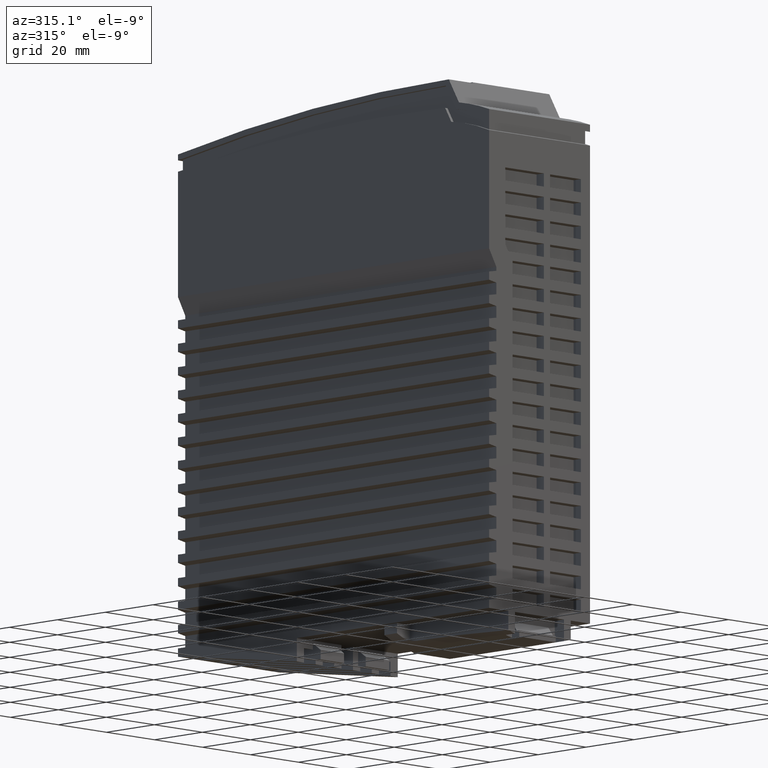
[diagram: clean part render]
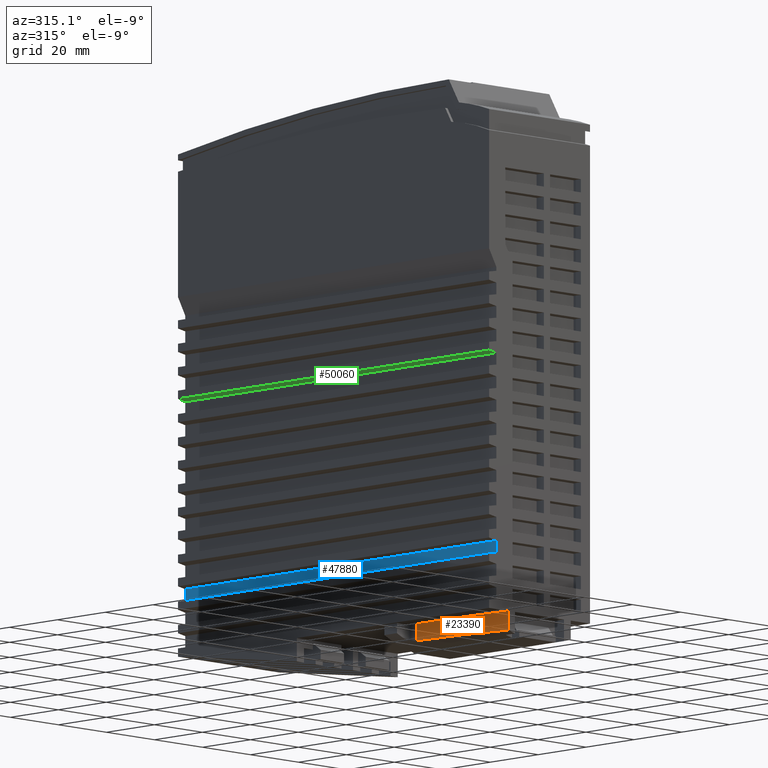
[diagram: same view with three faces highlighted in distinct colors, each labeled with its STEP entity id]
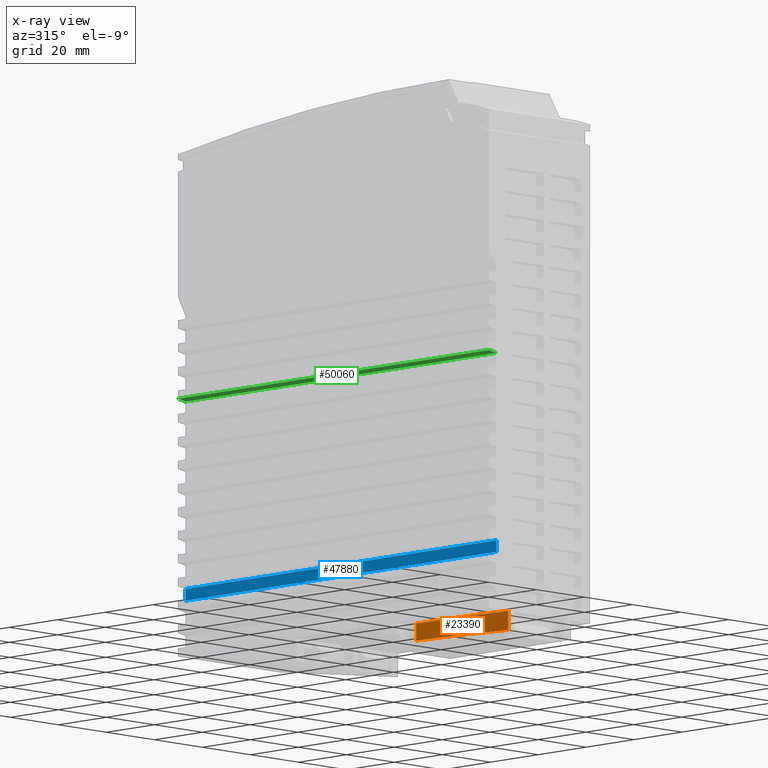
[diagram: x-ray of the same camera — body ghosted, the three highlighted faces saturated]
A machine part, auxiliary view with three faces highlighted in distinct colors.
The next image is the same camera in x-ray (body ghosted, the three faces saturated) — at least one of them is partly hidden behind the body in this view.
Their STEP definitions:

[orange] entity #23390 — the highlighted cylindrical surface (partial cylindrical patch) has radius 430 mm, axis along (0, 0, -1).
#1280=CARTESIAN_POINT('',(38.53,0.,-29.5));
#1290=DIRECTION('',(0.,-1.,0.));
#1300=DIRECTION('',(0.,0.,1.));
#1310=AXIS2_PLACEMENT_3D('',#1280,#1290,#1300);
#1320=CYLINDRICAL_SURFACE('',#1310,46.1);
#1720=CARTESIAN_POINT('',(-5.06958834950933,36.5344431191703,
-14.5238223916637));
#1730=VERTEX_POINT('',#1720);
#1760=CARTESIAN_POINT('',(0.,41.47129019691,-444.495481389));
#1770=DIRECTION('',(-1.,0.,0.));
#1780=DIRECTION('',(0.,-0.0952820702253681,0.99545031372418));
#1790=AXIS2_PLACEMENT_3D('',#1760,#1770,#1780);
#1800=CYLINDRICAL_SURFACE('',#1790,430.);
#1810=CARTESIAN_POINT('',(-5.06958834947785,36.5344431191701,
-14.523822391655));
#1820=CARTESIAN_POINT('',(-5.08161495132548,33.4850424156857,
-14.5588349898968));
#1830=CARTESIAN_POINT('',(-5.10477828774327,30.4359726375659,
-14.6262902708517));
#1840=CARTESIAN_POINT('',(-5.13856861772166,27.3880666899406,
-14.7261679013421));
#1850=CARTESIAN_POINT('',(-5.17235732851858,24.340306793355,
-14.8260407458476));
#1860=CARTESIAN_POINT('',(-5.21677254022735,21.2934515863635,
-14.9583373539935));
#1870=CARTESIAN_POINT('',(-5.2708431375056,18.2477759345531,
-15.1230691577225));
#1880=CARTESIAN_POINT('',(-5.32491260524339,15.2021639072263,
-15.2877975201869));
#1890=CARTESIAN_POINT('',(-5.38863195196613,12.1580082008686,
-15.4849502885069));
#1900=CARTESIAN_POINT('',(-5.46055662319525,9.11636083191842,
-15.7144667139256));
#1910=CARTESIAN_POINT('',(-5.53248128974276,6.07471366095047,
-15.9439831244049));
#1920=CARTESIAN_POINT('',(-5.61260873870129,3.03557969791839,
-16.2058627671489));
#1930=CARTESIAN_POINT('',(-5.69906284333233,2.00291165153543E-10,
-16.4999999999784));
#1940=B_SPLINE_CURVE_WITH_KNOTS('',3,(#1810,#1820,#1830,#1840,#1850,
#1860,#1870,#1880,#1890,#1900,#1910,#1920,#1930),.UNSPECIFIED.,.F.,.F.,(
4,3,3,3,4),(0.,9.1490664223015,18.2991160483553,27.4518141755408,
36.6052452592268),.UNSPECIFIED.);
#1950=SURFACE_CURVE('',#1940,(#1800,#1320),.CURVE_3D.);
#1960=CARTESIAN_POINT('',(-5.69906284337091,2.8421709430404E-14,
-16.4999999999978));
#1970=VERTEX_POINT('',#1960);
#1980=EDGE_CURVE('',#1730,#1970,#1950,.T.);
#15980=CARTESIAN_POINT('',(0.,2.8421709430404E-14,-16.4999999999978));
#15990=VERTEX_POINT('',#15980);
#16020=CARTESIAN_POINT('',(0.,41.47129019691,-444.495481389));
#16030=DIRECTION('',(-1.,0.,0.));
#16040=DIRECTION('',(0.,-0.0952820702253681,0.99545031372418));
#16050=AXIS2_PLACEMENT_3D('',#16020,#16030,#16040);
#16060=CIRCLE('',#16050,430.);
#16070=CARTESIAN_POINT('',(0.,36.53444311917,-14.5238223916528));
#16080=VERTEX_POINT('',#16070);
#16090=EDGE_CURVE('',#15990,#16080,#16060,.T.);
#23230=CARTESIAN_POINT('',(0.,36.53444311917,-14.5238223916542));
#23240=DIRECTION('',(-1.,0.,0.));
#23250=VECTOR('',#23240,1.);
#23260=LINE('',#23230,#23250);
#23270=EDGE_CURVE('',#16080,#1730,#23260,.T.);
#23280=ORIENTED_EDGE('',*,*,#23270,.T.);
#23290=ORIENTED_EDGE('',*,*,#16090,.T.);
#23300=CARTESIAN_POINT('',(0.,2.8421709430404E-14,-16.4999999999978));
#23310=DIRECTION('',(-1.,0.,0.));
#23320=VECTOR('',#23310,1.);
#23330=LINE('',#23300,#23320);
#23340=EDGE_CURVE('',#15990,#1970,#23330,.T.);
#23350=ORIENTED_EDGE('',*,*,#23340,.F.);
#23360=ORIENTED_EDGE('',*,*,#1980,.T.);
#23370=EDGE_LOOP('',(#23360,#23350,#23290,#23280));
#23380=FACE_OUTER_BOUND('',#23370,.T.);
#23390=ADVANCED_FACE('',(#23380),#1800,.T.);

[blue] entity #47880 — the highlighted planar face has unit normal (1, 0, 0).
#40710=CARTESIAN_POINT('',(20.4865285868123,130.,-11.5));
#40720=VERTEX_POINT('',#40710);
#40750=CARTESIAN_POINT('',(128.90472881771,130.,-11.5));
#40760=DIRECTION('',(1.,0.,0.));
#40770=VECTOR('',#40760,1.);
#40780=LINE('',#40750,#40770);
#40790=CARTESIAN_POINT('',(16.9999999999996,130.,-11.5));
#40800=VERTEX_POINT('',#40790);
#40810=EDGE_CURVE('',#40800,#40720,#40780,.T.);
#47580=CARTESIAN_POINT('',(16.9999999999996,-13.0000024000001,-11.5));
#47590=DIRECTION('',(0.,0.,-1.));
#47600=DIRECTION('',(1.,0.,0.));
#47610=AXIS2_PLACEMENT_3D('',#47580,#47590,#47600);
#47620=PLANE('',#47610);
#47630=CARTESIAN_POINT('',(20.4865285868123,-13.0000024000001,-11.5));
#47640=DIRECTION('',(0.,1.,0.));
#47650=VECTOR('',#47640,1.);
#47660=LINE('',#47630,#47650);
#47670=CARTESIAN_POINT('',(20.4865285868123,0.,-11.5));
#47680=VERTEX_POINT('',#47670);
#47690=EDGE_CURVE('',#47680,#40720,#47660,.T.);
#47700=ORIENTED_EDGE('',*,*,#47690,.T.);
#47710=CARTESIAN_POINT('',(128.90472881771,0.,-11.5));
#47720=DIRECTION('',(1.,0.,0.));
#47730=VECTOR('',#47720,1.);
#47740=LINE('',#47710,#47730);
#47750=CARTESIAN_POINT('',(16.9999999999996,0.,-11.5));
#47760=VERTEX_POINT('',#47750);
#47770=EDGE_CURVE('',#47760,#47680,#47740,.T.);
#47780=ORIENTED_EDGE('',*,*,#47770,.T.);
#47790=CARTESIAN_POINT('',(16.9999999999996,-13.0000024000001,-11.5));
#47800=DIRECTION('',(0.,1.,0.));
#47810=VECTOR('',#47800,1.);
#47820=LINE('',#47790,#47810);
#47830=EDGE_CURVE('',#47760,#40800,#47820,.T.);
#47840=ORIENTED_EDGE('',*,*,#47830,.F.);
#47850=ORIENTED_EDGE('',*,*,#40810,.F.);
#47860=EDGE_LOOP('',(#47850,#47840,#47780,#47700));
#47870=FACE_OUTER_BOUND('',#47860,.T.);
#47880=ADVANCED_FACE('',(#47870),#47620,.F.);

[green] entity #50060 — the highlighted planar face has unit normal (0.1736, 0, 0.9848).
#38390=CARTESIAN_POINT('',(77.0155095289376,130.,-8.5));
#38400=VERTEX_POINT('',#38390);
#38430=CARTESIAN_POINT('',(77.2800000000002,130.,-7.));
#38440=DIRECTION('',(0.173648177666902,0.,0.984807753012213));
#38450=VECTOR('',#38440,1.);
#38460=LINE('',#38430,#38450);
#38470=CARTESIAN_POINT('',(76.4865285868123,130.,-11.5));
#38480=VERTEX_POINT('',#38470);
#38490=EDGE_CURVE('',#38480,#38400,#38460,.T.);
#49760=CARTESIAN_POINT('',(76.4865285868123,-13.0000024000001,-11.5));
#49770=DIRECTION('',(0.984807753012213,0.,-0.173648177666902));
#49780=DIRECTION('',(0.173648177666902,0.,0.984807753012213));
#49790=AXIS2_PLACEMENT_3D('',#49760,#49770,#49780);
#49800=PLANE('',#49790);
#49810=CARTESIAN_POINT('',(77.2800000000002,0.,-7.));
#49820=DIRECTION('',(0.173648177666902,0.,0.984807753012213));
#49830=VECTOR('',#49820,1.);
#49840=LINE('',#49810,#49830);
#49850=CARTESIAN_POINT('',(76.4865285868123,0.,-11.5));
#49860=VERTEX_POINT('',#49850);
#49870=CARTESIAN_POINT('',(77.0155095289376,0.,-8.5));
#49880=VERTEX_POINT('',#49870);
#49890=EDGE_CURVE('',#49860,#49880,#49840,.T.);
#49900=ORIENTED_EDGE('',*,*,#49890,.T.);
#49910=CARTESIAN_POINT('',(76.4865285868123,-13.0000024000001,-11.5));
#49920=DIRECTION('',(0.,1.,0.));
#49930=VECTOR('',#49920,1.);
#49940=LINE('',#49910,#49930);
#49950=EDGE_CURVE('',#49860,#38480,#49940,.T.);
#49960=ORIENTED_EDGE('',*,*,#49950,.F.);
#49970=ORIENTED_EDGE('',*,*,#38490,.F.);
#49980=CARTESIAN_POINT('',(77.0155095289376,64.9999998943551,-8.5));
#49990=DIRECTION('',(0.,-1.,0.));
#50000=VECTOR('',#49990,1.);
#50010=LINE('',#49980,#50000);
#50020=EDGE_CURVE('',#38400,#49880,#50010,.T.);
#50030=ORIENTED_EDGE('',*,*,#50020,.F.);
#50040=EDGE_LOOP('',(#50030,#49970,#49960,#49900));
#50050=FACE_OUTER_BOUND('',#50040,.T.);
#50060=ADVANCED_FACE('',(#50050),#49800,.F.);